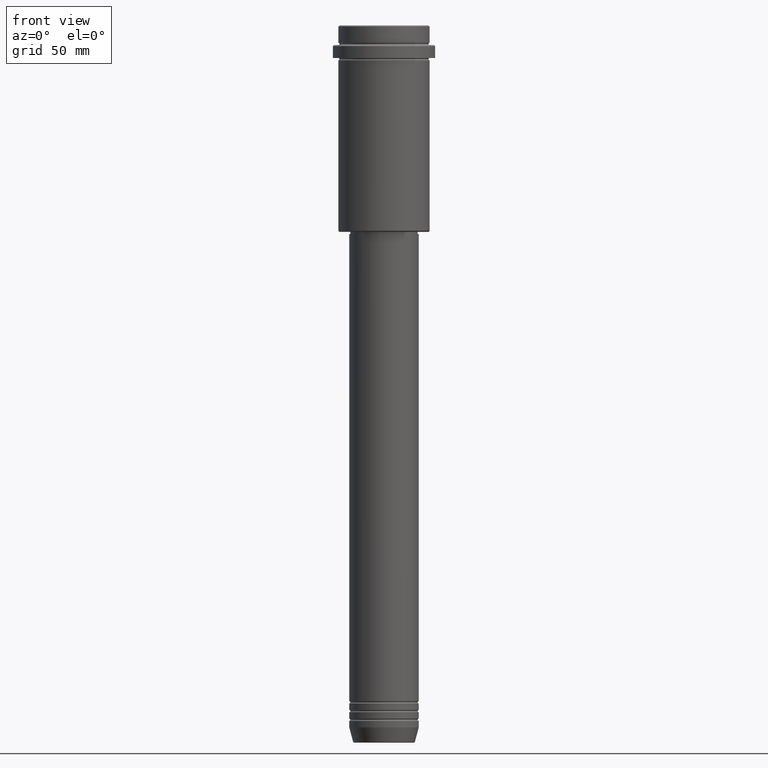
[diagram: clean part render]
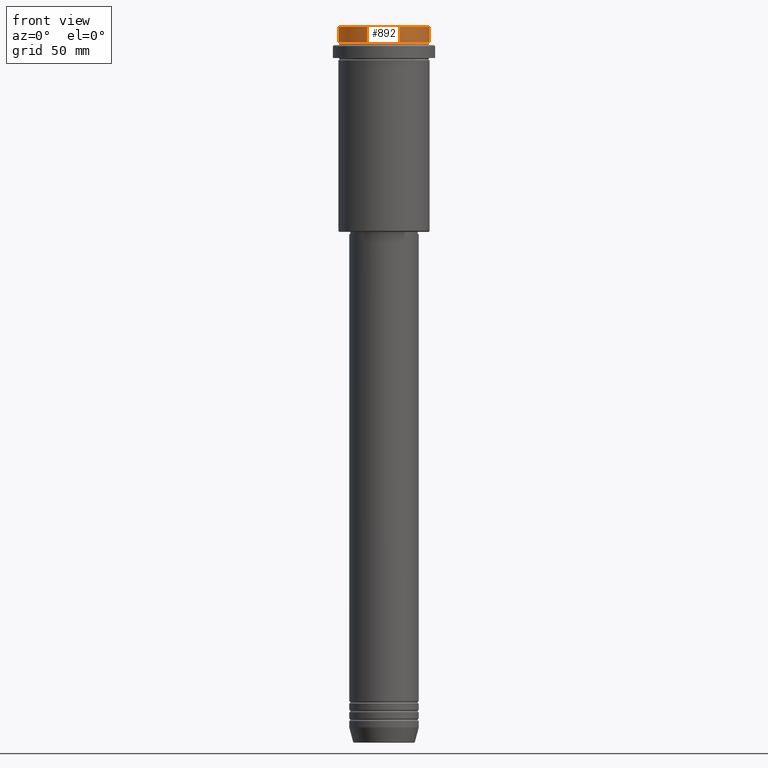
[diagram: same view with one face highlighted and labeled with its STEP entity id]
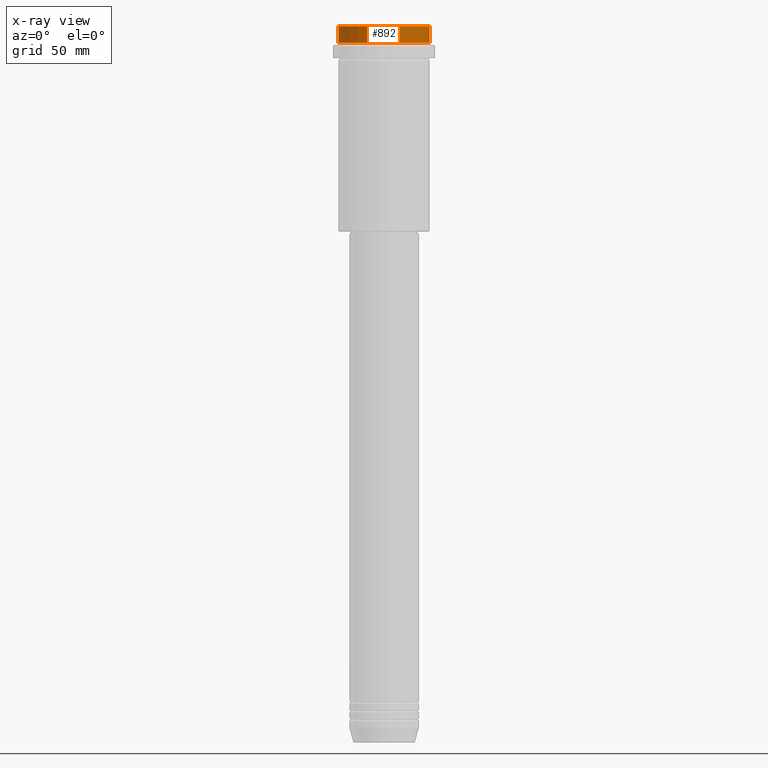
[diagram: x-ray of the same camera — body ghosted, the highlighted face saturated]
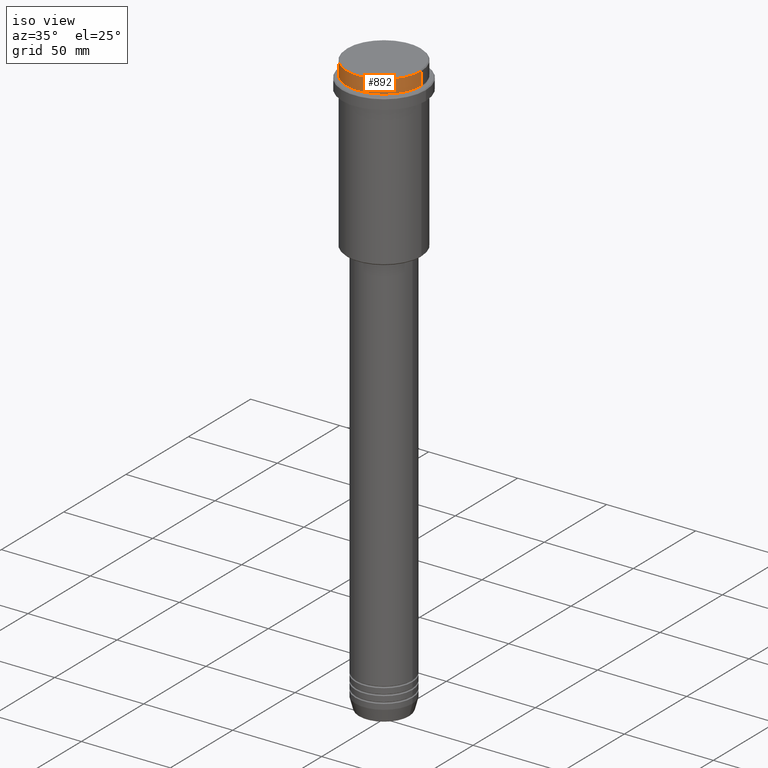
[diagram: same view with one face highlighted and labeled with its STEP entity id]
A machine part, front view. The second image highlights one B-rep face of the part: STEP entity #892.
The next image is the same camera in x-ray: the body ghosted, the highlighted face saturated — about 0% of this face is hidden behind the body in this view.
A second angle (iso view) of the same face is appended — the face is thin or edge-on in the first view.
In plain terms, the highlighted cylindrical surface (partial cylindrical patch) has radius 21 mm, axis along (-0, -0, 1).
Its self-contained STEP definition (entity closure, byte-faithful):
#18 = EDGE_CURVE ( 'NONE', #852, #62, #1003, .T. ) ;
#21 = ORIENTED_EDGE ( 'NONE', *, *, #1342, .T. ) ;
#27 = CARTESIAN_POINT ( 'NONE',  ( -20.99999999999999645, 2.571758278209441267E-15, -7.999999999999998224 ) ) ;
#62 = VERTEX_POINT ( 'NONE', #1037 ) ;
#155 = DIRECTION ( 'NONE',  ( 1.000000000000000000, 0.000000000000000000, 0.000000000000000000 ) ) ;
#178 = EDGE_LOOP ( 'NONE', ( #1366, #1196, #956, #21 ) ) ;
#193 = EDGE_CURVE ( 'NONE', #284, #644, #1349, .T. ) ;
#250 = CYLINDRICAL_SURFACE ( 'NONE', #508, 20.99999999999999645 ) ;
#269 = CIRCLE ( 'NONE', #1307, 20.99999999999999645 ) ;
#284 = VERTEX_POINT ( 'NONE', #1211 ) ;
#316 = DIRECTION ( 'NONE',  ( 1.000000000000000000, 0.000000000000000000, 0.000000000000000000 ) ) ;
#452 = VECTOR ( 'NONE', #1259, 1000.000000000000000 ) ;
#458 = DIRECTION ( 'NONE',  ( 1.000000000000000000, 0.000000000000000000, 0.000000000000000000 ) ) ;
#508 = AXIS2_PLACEMENT_3D ( 'NONE', #591, #1218, #155 ) ;
#511 = CARTESIAN_POINT ( 'NONE',  ( 20.99999999999999645, 0.000000000000000000, 0.000000000000000000 ) ) ;
#591 = CARTESIAN_POINT ( 'NONE',  ( 0.000000000000000000, 0.000000000000000000, 0.000000000000000000 ) ) ;
#613 = VECTOR ( 'NONE', #951, 1000.000000000000000 ) ;
#644 = VERTEX_POINT ( 'NONE', #1272 ) ;
#671 = AXIS2_PLACEMENT_3D ( 'NONE', #1321, #1309, #316 ) ;
#852 = VERTEX_POINT ( 'NONE', #27 ) ;
#887 = CARTESIAN_POINT ( 'NONE',  ( 0.000000000000000000, 0.000000000000000000, -0.5000000000000350830 ) ) ;
#892 = ADVANCED_FACE ( 'NONE', ( #1234 ), #250, .T. ) ;
#951 = DIRECTION ( 'NONE',  ( -0.000000000000000000, -0.000000000000000000, 1.000000000000000000 ) ) ;
#956 = ORIENTED_EDGE ( 'NONE', *, *, #193, .T. ) ;
#1003 = LINE ( 'NONE', #1137, #452 ) ;
#1037 = CARTESIAN_POINT ( 'NONE',  ( -20.99999999999999645, 2.571758278209441267E-15, -0.5000000000000350830 ) ) ;
#1135 = CIRCLE ( 'NONE', #671, 20.99999999999999645 ) ;
#1137 = CARTESIAN_POINT ( 'NONE',  ( -20.99999999999999645, 2.571758278209441267E-15, 0.000000000000000000 ) ) ;
#1196 = ORIENTED_EDGE ( 'NONE', *, *, #1219, .T. ) ;
#1211 = CARTESIAN_POINT ( 'NONE',  ( 20.99999999999999645, 0.000000000000000000, -7.999999999999998224 ) ) ;
#1218 = DIRECTION ( 'NONE',  ( -0.000000000000000000, -0.000000000000000000, 1.000000000000000000 ) ) ;
#1219 = EDGE_CURVE ( 'NONE', #852, #284, #1135, .T. ) ;
#1234 = FACE_OUTER_BOUND ( 'NONE', #178, .T. ) ;
#1259 = DIRECTION ( 'NONE',  ( -0.000000000000000000, -0.000000000000000000, 1.000000000000000000 ) ) ;
#1272 = CARTESIAN_POINT ( 'NONE',  ( 20.99999999999999645, 0.000000000000000000, -0.5000000000000350830 ) ) ;
#1307 = AXIS2_PLACEMENT_3D ( 'NONE', #887, #1336, #458 ) ;
#1309 = DIRECTION ( 'NONE',  ( -0.000000000000000000, -0.000000000000000000, 1.000000000000000000 ) ) ;
#1321 = CARTESIAN_POINT ( 'NONE',  ( 0.000000000000000000, 0.000000000000000000, -7.999999999999998224 ) ) ;
#1336 = DIRECTION ( 'NONE',  ( 0.000000000000000000, 0.000000000000000000, -1.000000000000000000 ) ) ;
#1342 = EDGE_CURVE ( 'NONE', #644, #62, #269, .T. ) ;
#1349 = LINE ( 'NONE', #511, #613 ) ;
#1366 = ORIENTED_EDGE ( 'NONE', *, *, #18, .F. ) ;